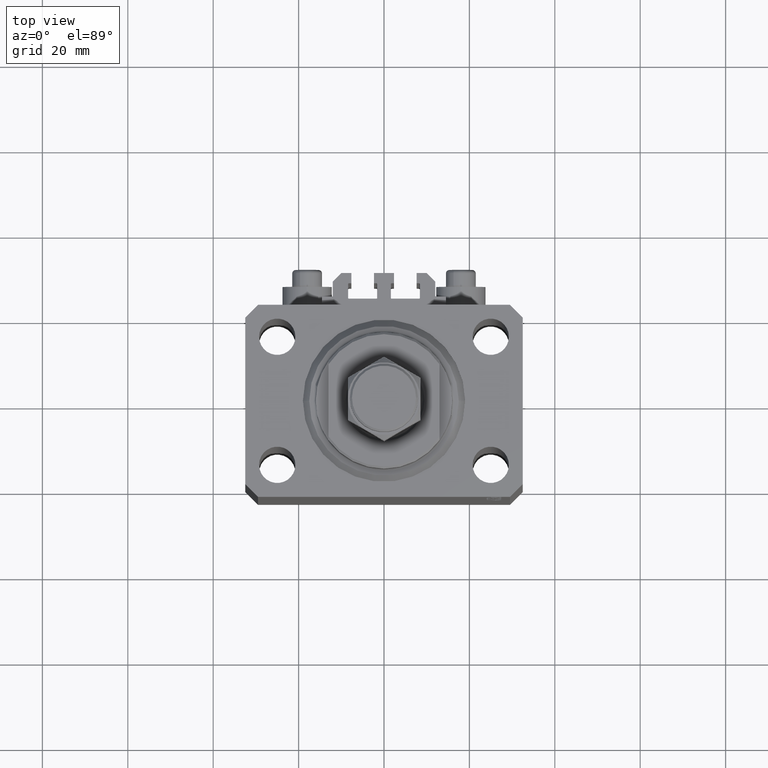
[diagram: clean part render]
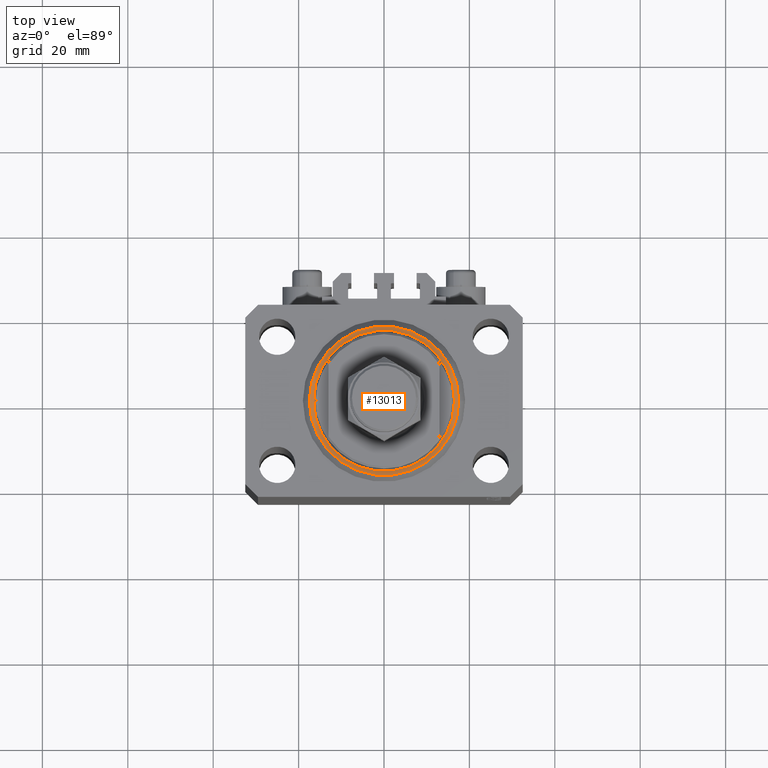
[diagram: same view with one face highlighted and labeled with its STEP entity id]
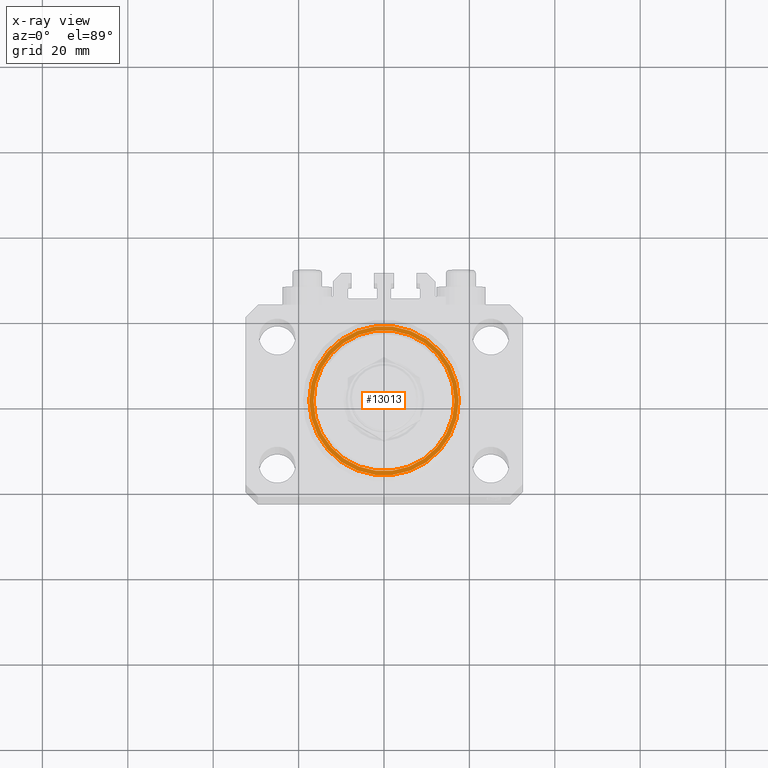
[diagram: x-ray of the same camera — body ghosted, the highlighted face saturated]
A machine part, top view. The second image highlights one B-rep face of the part: STEP entity #13013.
The next image is the same camera in x-ray: the body ghosted, the highlighted face saturated — about 0% of this face is hidden behind the body in this view.
In plain terms, the highlighted planar face has unit normal (0, 0, -1).
Its self-contained STEP definition (entity closure, byte-faithful):
#746 = VERTEX_POINT ( 'NONE', #8516 ) ;
#1812 = CARTESIAN_POINT ( 'NONE',  ( 0.000000000000000000, 0.000000000000000000, 0.000000000000000000 ) ) ;
#2443 = DIRECTION ( 'NONE',  ( 1.000000000000000000, 0.000000000000000000, 0.000000000000000000 ) ) ;
#4849 = ORIENTED_EDGE ( 'NONE', *, *, #30954, .T. ) ;
#5525 = EDGE_CURVE ( 'NONE', #30061, #746, #10895, .T. ) ;
#6017 = FACE_OUTER_BOUND ( 'NONE', #13971, .T. ) ;
#6266 = FACE_BOUND ( 'NONE', #48548, .T. ) ;
#8281 = CIRCLE ( 'NONE', #40688, 16.50000000000000000 ) ;
#8516 = CARTESIAN_POINT ( 'NONE',  ( 17.49999999999999289, 0.000000000000000000, 0.000000000000000000 ) ) ;
#8640 = AXIS2_PLACEMENT_3D ( 'NONE', #1812, #21379, #39694 ) ;
#9814 = DIRECTION ( 'NONE',  ( 1.000000000000000000, 0.000000000000000000, 0.000000000000000000 ) ) ;
#10634 = DIRECTION ( 'NONE',  ( -0.000000000000000000, -0.000000000000000000, -1.000000000000000000 ) ) ;
#10895 = CIRCLE ( 'NONE', #33042, 17.49999999999999289 ) ;
#13004 = DIRECTION ( 'NONE',  ( -0.000000000000000000, -0.000000000000000000, -1.000000000000000000 ) ) ;
#13013 = ADVANCED_FACE ( 'NONE', ( #6266, #6017 ), #28813, .F. ) ;
#13971 = EDGE_LOOP ( 'NONE', ( #17262, #27928 ) ) ;
#16017 = AXIS2_PLACEMENT_3D ( 'NONE', #34920, #16132, #45106 ) ;
#16132 = DIRECTION ( 'NONE',  ( 0.000000000000000000, 0.000000000000000000, 1.000000000000000000 ) ) ;
#17262 = ORIENTED_EDGE ( 'NONE', *, *, #25820, .T. ) ;
#17491 = AXIS2_PLACEMENT_3D ( 'NONE', #20925, #13004, #43430 ) ;
#20925 = CARTESIAN_POINT ( 'NONE',  ( 0.000000000000000000, 0.000000000000000000, 0.000000000000000000 ) ) ;
#21379 = DIRECTION ( 'NONE',  ( 0.000000000000000000, 0.000000000000000000, 1.000000000000000000 ) ) ;
#25733 = CARTESIAN_POINT ( 'NONE',  ( 0.000000000000000000, 0.000000000000000000, 0.000000000000000000 ) ) ;
#25820 = EDGE_CURVE ( 'NONE', #746, #30061, #36450, .T. ) ;
#27928 = ORIENTED_EDGE ( 'NONE', *, *, #5525, .T. ) ;
#28813 = PLANE ( 'NONE',  #8640 ) ;
#28814 = CARTESIAN_POINT ( 'NONE',  ( 16.50000000000000000, 0.000000000000000000, 2.168404344971008868E-16 ) ) ;
#29951 = VERTEX_POINT ( 'NONE', #28814 ) ;
#30061 = VERTEX_POINT ( 'NONE', #40678 ) ;
#30954 = EDGE_CURVE ( 'NONE', #29951, #40400, #8281, .T. ) ;
#33042 = AXIS2_PLACEMENT_3D ( 'NONE', #25733, #10634, #2443 ) ;
#34920 = CARTESIAN_POINT ( 'NONE',  ( 0.000000000000000000, 0.000000000000000000, 0.000000000000000000 ) ) ;
#36039 = DIRECTION ( 'NONE',  ( 0.000000000000000000, 0.000000000000000000, 1.000000000000000000 ) ) ;
#36285 = CARTESIAN_POINT ( 'NONE',  ( 0.000000000000000000, 0.000000000000000000, 0.000000000000000000 ) ) ;
#36450 = CIRCLE ( 'NONE', #17491, 17.49999999999999289 ) ;
#39694 = DIRECTION ( 'NONE',  ( 1.000000000000000000, 0.000000000000000000, -0.000000000000000000 ) ) ;
#40400 = VERTEX_POINT ( 'NONE', #47415 ) ;
#40678 = CARTESIAN_POINT ( 'NONE',  ( -17.49999999999999289, 2.234980408443919215E-15, 0.000000000000000000 ) ) ;
#40688 = AXIS2_PLACEMENT_3D ( 'NONE', #36285, #36039, #9814 ) ;
#41284 = CIRCLE ( 'NONE', #16017, 16.50000000000000000 ) ;
#43430 = DIRECTION ( 'NONE',  ( 1.000000000000000000, 0.000000000000000000, 0.000000000000000000 ) ) ;
#45106 = DIRECTION ( 'NONE',  ( 1.000000000000000000, 0.000000000000000000, 0.000000000000000000 ) ) ;
#47415 = CARTESIAN_POINT ( 'NONE',  ( -16.50000000000000000, 2.020667218593133100E-15, 2.168404344971008868E-16 ) ) ;
#47684 = EDGE_CURVE ( 'NONE', #40400, #29951, #41284, .T. ) ;
#48390 = ORIENTED_EDGE ( 'NONE', *, *, #47684, .T. ) ;
#48548 = EDGE_LOOP ( 'NONE', ( #4849, #48390 ) ) ;